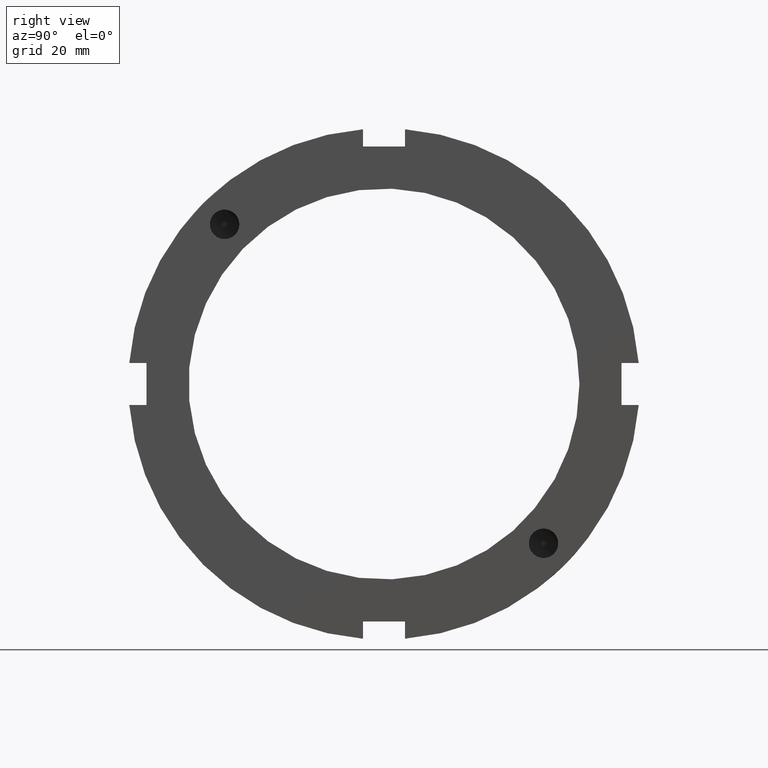
[diagram: clean part render]
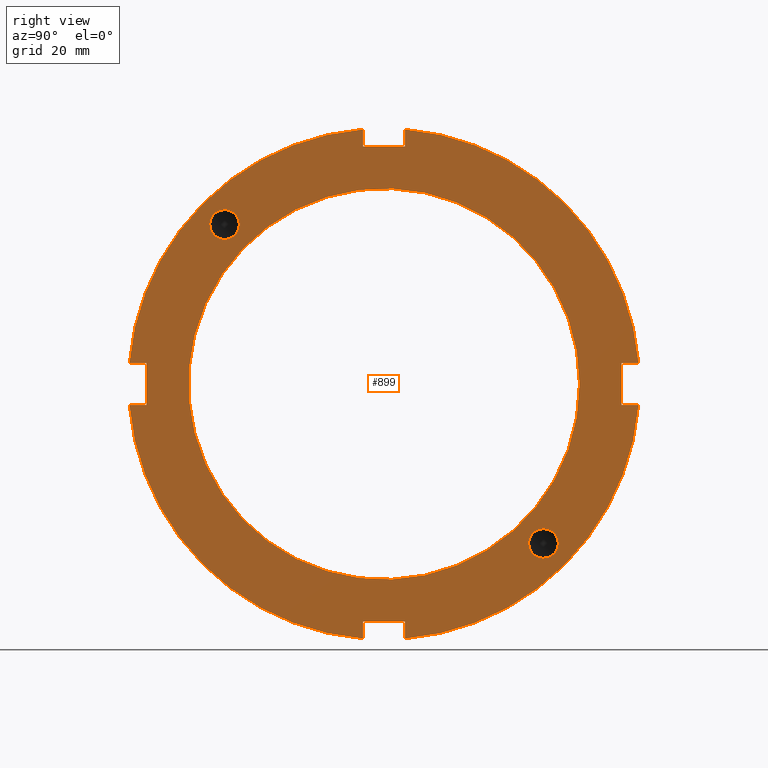
[diagram: same view with one face highlighted and labeled with its STEP entity id]
A machine part, right view. The second image highlights one B-rep face of the part: STEP entity #899.
In plain terms, the highlighted planar face has unit normal (1, 0, 0).
Its self-contained STEP definition (entity closure, byte-faithful):
#73=CARTESIAN_POINT('',(20.999999999999986,-28.97500429449552,26.516504294495537));
#74=VERTEX_POINT('',#73);
#75=CARTESIAN_POINT('',(20.999999999999986,-26.516504294495519,26.516504294495537));
#76=DIRECTION('',(-1.0,0.0,0.0));
#77=DIRECTION('',(0.0,-1.0,0.0));
#78=AXIS2_PLACEMENT_3D('',#75,#76,#77);
#79=CIRCLE('',#78,2.4585);
#80=EDGE_CURVE('',#74,#74,#79,.T.);
#311=CARTESIAN_POINT('',(20.999999999999986,26.516504294495533,-28.975004294495523));
#312=VERTEX_POINT('',#311);
#313=CARTESIAN_POINT('',(20.999999999999986,26.516504294495533,-26.516504294495526));
#314=DIRECTION('',(-1.0,0.0,0.0));
#315=DIRECTION('',(0.0,0.0,-1.0));
#316=AXIS2_PLACEMENT_3D('',#313,#314,#315);
#317=CIRCLE('',#316,2.4585);
#318=EDGE_CURVE('',#312,#312,#317,.T.);
#429=CARTESIAN_POINT('',(20.999999999999986,-3.500000000000006,-39.5));
#430=VERTEX_POINT('',#429);
#437=CARTESIAN_POINT('',(20.999999999999986,-3.500000000000006,-42.355637169094742));
#438=VERTEX_POINT('',#437);
#439=CARTESIAN_POINT('',(20.999999999999986,-3.500000000000005,-42.355637169094742));
#440=DIRECTION('',(0.0,0.0,1.0));
#441=VECTOR('',#440,2.855637169094742);
#442=LINE('',#439,#441);
#443=EDGE_CURVE('',#438,#430,#442,.T.);
#469=CARTESIAN_POINT('',(20.999999999999986,3.49999999999999,-42.355637169094742));
#470=VERTEX_POINT('',#469);
#477=CARTESIAN_POINT('',(20.999999999999986,3.499999999999992,-39.5));
#478=VERTEX_POINT('',#477);
#479=CARTESIAN_POINT('',(20.999999999999986,3.499999999999992,-39.5));
#480=DIRECTION('',(0.0,0.0,-1.0));
#481=VECTOR('',#480,2.855637169094742);
#482=LINE('',#479,#481);
#483=EDGE_CURVE('',#478,#470,#482,.T.);
#506=CARTESIAN_POINT('',(20.999999999999986,-3.500000000000004,-39.499999999999993));
#507=DIRECTION('',(0.0,1.0,0.0));
#508=VECTOR('',#507,6.999999999999996);
#509=LINE('',#506,#508);
#510=EDGE_CURVE('',#430,#478,#509,.T.);
#531=CARTESIAN_POINT('',(20.999999999999986,-39.5,3.500000000000003));
#532=VERTEX_POINT('',#531);
#539=CARTESIAN_POINT('',(20.999999999999986,-42.355637169094742,3.500000000000004));
#540=VERTEX_POINT('',#539);
#541=CARTESIAN_POINT('',(20.999999999999986,-42.355637169094742,3.500000000000003));
#542=DIRECTION('',(0.0,1.0,0.0));
#543=VECTOR('',#542,2.855637169094742);
#544=LINE('',#541,#543);
#545=EDGE_CURVE('',#540,#532,#544,.T.);
#571=CARTESIAN_POINT('',(20.999999999999986,-42.355637169094742,-3.499999999999993));
#572=VERTEX_POINT('',#571);
#579=CARTESIAN_POINT('',(20.999999999999986,-39.5,-3.499999999999994));
#580=VERTEX_POINT('',#579);
#581=CARTESIAN_POINT('',(20.999999999999986,-39.5,-3.499999999999993));
#582=DIRECTION('',(0.0,-1.0,0.0));
#583=VECTOR('',#582,2.855637169094742);
#584=LINE('',#581,#583);
#585=EDGE_CURVE('',#580,#572,#584,.T.);
#608=CARTESIAN_POINT('',(20.999999999999986,-39.499999999999993,3.500000000000003));
#609=DIRECTION('',(0.0,0.0,-1.0));
#610=VECTOR('',#609,6.999999999999997);
#611=LINE('',#608,#610);
#612=EDGE_CURVE('',#532,#580,#611,.T.);
#633=CARTESIAN_POINT('',(20.999999999999986,3.500000000000001,39.5));
#634=VERTEX_POINT('',#633);
#641=CARTESIAN_POINT('',(20.999999999999986,3.500000000000001,42.355637169094742));
#642=VERTEX_POINT('',#641);
#643=CARTESIAN_POINT('',(20.999999999999986,3.499999999999998,42.355637169094734));
#644=DIRECTION('',(0.0,0.0,-1.0));
#645=VECTOR('',#644,2.855637169094734);
#646=LINE('',#643,#645);
#647=EDGE_CURVE('',#642,#634,#646,.T.);
#673=CARTESIAN_POINT('',(20.999999999999986,-3.499999999999996,42.355637169094742));
#674=VERTEX_POINT('',#673);
#681=CARTESIAN_POINT('',(20.999999999999986,-3.499999999999996,39.5));
#682=VERTEX_POINT('',#681);
#683=CARTESIAN_POINT('',(20.999999999999986,-3.499999999999996,39.5));
#684=DIRECTION('',(0.0,0.0,1.0));
#685=VECTOR('',#684,2.855637169094734);
#686=LINE('',#683,#685);
#687=EDGE_CURVE('',#682,#674,#686,.T.);
#710=CARTESIAN_POINT('',(20.999999999999986,3.5,39.499999999999993));
#711=DIRECTION('',(0.0,-1.0,0.0));
#712=VECTOR('',#711,6.999999999999996);
#713=LINE('',#710,#712);
#714=EDGE_CURVE('',#634,#682,#713,.T.);
#726=CARTESIAN_POINT('',(20.999999999999986,42.355637169094742,3.499999999999998));
#727=VERTEX_POINT('',#726);
#728=CARTESIAN_POINT('',(20.999999999999986,0.0,0.0));
#729=DIRECTION('',(1.0,0.0,0.0));
#730=DIRECTION('',(0.0,1.0,0.0));
#731=AXIS2_PLACEMENT_3D('',#728,#729,#730);
#732=CIRCLE('',#731,42.5);
#733=EDGE_CURVE('',#727,#642,#732,.T.);
#759=CARTESIAN_POINT('',(20.999999999999986,0.0,0.0));
#760=DIRECTION('',(1.0,0.0,0.0));
#761=DIRECTION('',(0.0,1.0,0.0));
#762=AXIS2_PLACEMENT_3D('',#759,#760,#761);
#763=CIRCLE('',#762,42.5);
#764=EDGE_CURVE('',#674,#540,#763,.T.);
#795=CARTESIAN_POINT('',(20.999999999999986,42.355637169094742,-3.499999999999998));
#796=VERTEX_POINT('',#795);
#803=CARTESIAN_POINT('',(20.999999999999986,0.0,0.0));
#804=DIRECTION('',(1.0,0.0,0.0));
#805=DIRECTION('',(0.0,1.0,0.0));
#806=AXIS2_PLACEMENT_3D('',#803,#804,#805);
#807=CIRCLE('',#806,42.5);
#808=EDGE_CURVE('',#470,#796,#807,.T.);
#822=CARTESIAN_POINT('',(20.999999999999986,0.0,0.0));
#823=DIRECTION('',(1.0,0.0,0.0));
#824=DIRECTION('',(0.0,1.0,0.0));
#825=AXIS2_PLACEMENT_3D('',#822,#823,#824);
#826=CIRCLE('',#825,42.5);
#827=EDGE_CURVE('',#572,#438,#826,.T.);
#840=CARTESIAN_POINT('',(20.999999999999986,37.5,0.0));
#841=DIRECTION('',(1.0,0.0,0.0));
#842=DIRECTION('',(0.0,0.0,-1.0));
#843=AXIS2_PLACEMENT_3D('',#840,#841,#842);
#844=PLANE('',#843);
#845=ORIENTED_EDGE('',*,*,#443,.T.);
#846=ORIENTED_EDGE('',*,*,#510,.T.);
#847=ORIENTED_EDGE('',*,*,#483,.T.);
#848=ORIENTED_EDGE('',*,*,#808,.T.);
#849=CARTESIAN_POINT('',(20.999999999999986,39.5,-3.499999999999999));
#850=VERTEX_POINT('',#849);
#851=CARTESIAN_POINT('',(20.999999999999986,42.355637169094742,-3.499999999999998));
#852=DIRECTION('',(0.0,-1.0,0.0));
#853=VECTOR('',#852,2.855637169094742);
#854=LINE('',#851,#853);
#855=EDGE_CURVE('',#796,#850,#854,.T.);
#856=ORIENTED_EDGE('',*,*,#855,.T.);
#857=CARTESIAN_POINT('',(20.999999999999986,39.5,3.499999999999999));
#858=VERTEX_POINT('',#857);
#859=CARTESIAN_POINT('',(20.999999999999986,39.499999999999993,-3.499999999999999));
#860=DIRECTION('',(0.0,0.0,1.0));
#861=VECTOR('',#860,6.999999999999998);
#862=LINE('',#859,#861);
#863=EDGE_CURVE('',#850,#858,#862,.T.);
#864=ORIENTED_EDGE('',*,*,#863,.T.);
#865=CARTESIAN_POINT('',(20.999999999999986,39.5,3.499999999999999));
#866=DIRECTION('',(0.0,1.0,0.0));
#867=VECTOR('',#866,2.855637169094742);
#868=LINE('',#865,#867);
#869=EDGE_CURVE('',#858,#727,#868,.T.);
#870=ORIENTED_EDGE('',*,*,#869,.T.);
#871=ORIENTED_EDGE('',*,*,#733,.T.);
#872=ORIENTED_EDGE('',*,*,#647,.T.);
#873=ORIENTED_EDGE('',*,*,#714,.T.);
#874=ORIENTED_EDGE('',*,*,#687,.T.);
#875=ORIENTED_EDGE('',*,*,#764,.T.);
#876=ORIENTED_EDGE('',*,*,#545,.T.);
#877=ORIENTED_EDGE('',*,*,#612,.T.);
#878=ORIENTED_EDGE('',*,*,#585,.T.);
#879=ORIENTED_EDGE('',*,*,#827,.T.);
#880=EDGE_LOOP('',(#845,#846,#847,#848,#856,#864,#870,#871,#872,#873,#874,#875,#876,#877,#878,#879));
#881=FACE_OUTER_BOUND('',#880,.T.);
#882=ORIENTED_EDGE('',*,*,#80,.T.);
#883=EDGE_LOOP('',(#882));
#884=FACE_BOUND('',#883,.T.);
#885=ORIENTED_EDGE('',*,*,#318,.T.);
#886=EDGE_LOOP('',(#885));
#887=FACE_BOUND('',#886,.T.);
#888=CARTESIAN_POINT('',(20.999999999999993,32.5,0.0));
#889=VERTEX_POINT('',#888);
#890=CARTESIAN_POINT('',(20.999999999999993,0.0,0.0));
#891=DIRECTION('',(1.0,0.0,0.0));
#892=DIRECTION('',(0.0,1.0,0.0));
#893=AXIS2_PLACEMENT_3D('',#890,#891,#892);
#894=CIRCLE('',#893,32.5);
#895=EDGE_CURVE('',#889,#889,#894,.T.);
#896=ORIENTED_EDGE('',*,*,#895,.F.);
#897=EDGE_LOOP('',(#896));
#898=FACE_BOUND('',#897,.T.);
#899=ADVANCED_FACE('',(#881,#884,#887,#898),#844,.T.);